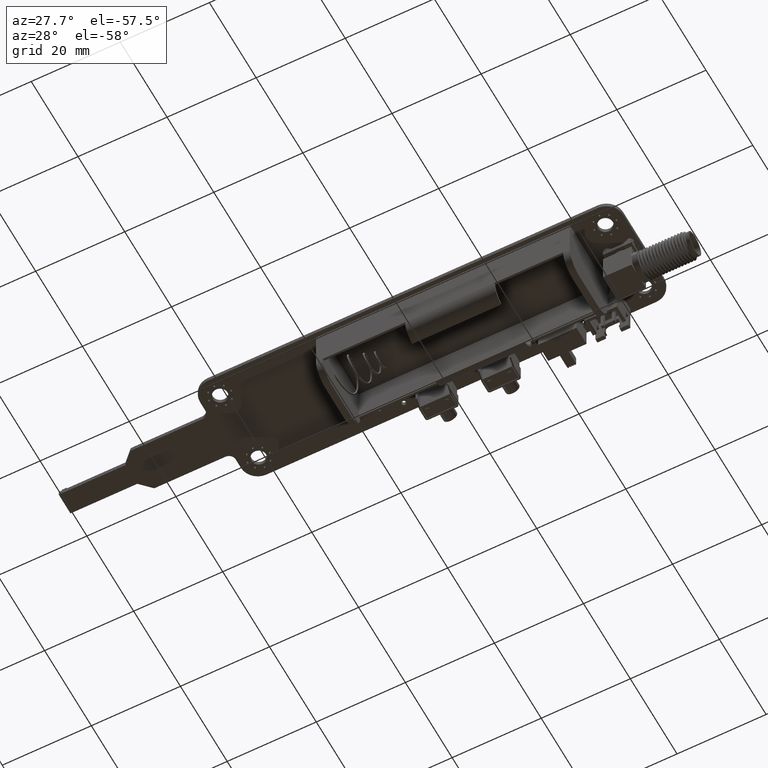
[diagram: clean part render]
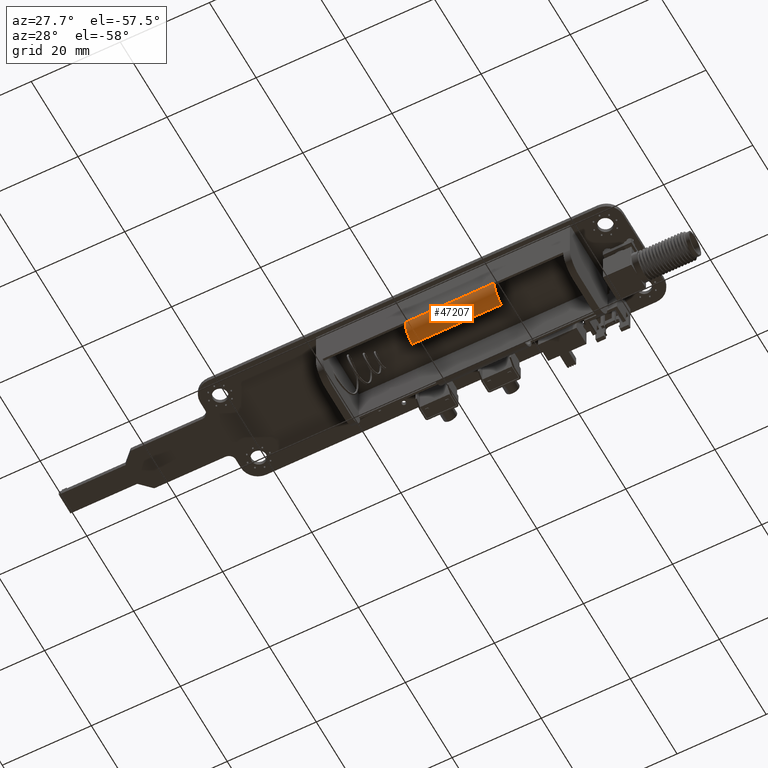
[diagram: same view with one face highlighted and labeled with its STEP entity id]
A machine part, auxiliary view. The second image highlights one B-rep face of the part: STEP entity #47207.
In plain terms, the highlighted cylindrical surface (edge-blend (fillet) strip) has radius 3.9991 mm, axis along (-1, -0, 0).
Its self-contained STEP definition (entity closure, byte-faithful):
#44886 = PLANE('',#44887);
#44887 = AXIS2_PLACEMENT_3D('',#44888,#44889,#44890);
#44888 = CARTESIAN_POINT('',(7.5,9.,1.5));
#44889 = DIRECTION('',(0.,1.,0.));
#44890 = DIRECTION('',(1.,0.,0.));
#45612 = VERTEX_POINT('',#45613);
#45613 = CARTESIAN_POINT('',(7.999084787302,9.,20.));
#45627 = PLANE('',#45628);
#45628 = AXIS2_PLACEMENT_3D('',#45629,#45630,#45631);
#45629 = CARTESIAN_POINT('',(7.5,9.,20.));
#45630 = DIRECTION('',(0.,0.,-1.));
#45631 = DIRECTION('',(-1.,0.,0.));
#45639 = EDGE_CURVE('',#45612,#45640,#45642,.T.);
#45640 = VERTEX_POINT('',#45641);
#45641 = CARTESIAN_POINT('',(7.999084787302,9.,40.));
#45642 = SURFACE_CURVE('',#45643,(#45647,#45654),.PCURVE_S1.);
#45643 = LINE('',#45644,#45645);
#45644 = CARTESIAN_POINT('',(7.999084787302,9.,20.));
#45645 = VECTOR('',#45646,1.);
#45646 = DIRECTION('',(0.,0.,1.));
#45647 = PCURVE('',#44886,#45648);
#45648 = DEFINITIONAL_REPRESENTATION('',(#45649),#45653);
#45649 = LINE('',#45650,#45651);
#45650 = CARTESIAN_POINT('',(0.499084787302,-18.5));
#45651 = VECTOR('',#45652,1.);
#45652 = DIRECTION('',(0.,-1.));
#45653 = ( GEOMETRIC_REPRESENTATION_CONTEXT(2) 
PARAMETRIC_REPRESENTATION_CONTEXT() REPRESENTATION_CONTEXT('2D SPACE',''
  ) );
#45654 = PCURVE('',#45655,#45660);
#45655 = CYLINDRICAL_SURFACE('',#45656,3.9991280149);
#45656 = AXIS2_PLACEMENT_3D('',#45657,#45658,#45659);
#45657 = CARTESIAN_POINT('',(3.999999999998,8.981405820546,20.));
#45658 = DIRECTION('',(-0.,-0.,-1.));
#45659 = DIRECTION('',(1.,0.,0.));
#45660 = DEFINITIONAL_REPRESENTATION('',(#45661),#45665);
#45661 = LINE('',#45662,#45663);
#45662 = CARTESIAN_POINT('',(6.278535731977,0.));
#45663 = VECTOR('',#45664,1.);
#45664 = DIRECTION('',(-0.,-1.));
#45665 = ( GEOMETRIC_REPRESENTATION_CONTEXT(2) 
PARAMETRIC_REPRESENTATION_CONTEXT() REPRESENTATION_CONTEXT('2D SPACE',''
  ) );
#45681 = PLANE('',#45682);
#45682 = AXIS2_PLACEMENT_3D('',#45683,#45684,#45685);
#45683 = CARTESIAN_POINT('',(7.5,9.,40.));
#45684 = DIRECTION('',(0.,0.,-1.));
#45685 = DIRECTION('',(-1.,0.,0.));
#47066 = PLANE('',#47067);
#47067 = AXIS2_PLACEMENT_3D('',#47068,#47069,#47070);
#47068 = CARTESIAN_POINT('',(4.990489871992,12.338379987411,20.));
#47069 = DIRECTION('',(-1.,0.,0.));
#47070 = DIRECTION('',(0.,1.,0.));
#47160 = VERTEX_POINT('',#47161);
#47161 = CARTESIAN_POINT('',(4.990489871992,12.855932203606,40.));
#47182 = EDGE_CURVE('',#45640,#47160,#47183,.T.);
#47183 = SURFACE_CURVE('',#47184,(#47189,#47200),.PCURVE_S1.);
#47184 = CIRCLE('',#47185,3.9991280149);
#47185 = AXIS2_PLACEMENT_3D('',#47186,#47187,#47188);
#47186 = CARTESIAN_POINT('',(3.999999999998,8.981405820546,40.));
#47187 = DIRECTION('',(0.,0.,1.));
#47188 = DIRECTION('',(1.,0.,-0.));
#47189 = PCURVE('',#45681,#47190);
#47190 = DEFINITIONAL_REPRESENTATION('',(#47191),#47199);
#47191 = ( BOUNDED_CURVE() B_SPLINE_CURVE(2,(#47192,#47193,#47194,#47195
    ,#47196,#47197,#47198),.UNSPECIFIED.,.F.,.F.) 
B_SPLINE_CURVE_WITH_KNOTS((1,2,2,2,2,1),(-2.094395102393,0.,
    2.094395102393,4.188790204786,6.28318530718,8.377580409573),
.UNSPECIFIED.) CURVE() GEOMETRIC_REPRESENTATION_ITEM() 
RATIONAL_B_SPLINE_CURVE((1.,0.5,1.,0.5,1.,0.5,1.)) REPRESENTATION_ITEM(
  '') );
#47192 = CARTESIAN_POINT('',(-0.499128014898,-1.8594179454E-02));
#47193 = CARTESIAN_POINT('',(-0.499128014898,6.908098728325));
#47194 = CARTESIAN_POINT('',(5.499564007452,3.444752274435));
#47195 = CARTESIAN_POINT('',(11.498256029802,-1.8594179454E-02));
#47196 = CARTESIAN_POINT('',(5.499564007452,-3.481940633343));
#47197 = CARTESIAN_POINT('',(-0.499128014898,-6.945287087233));
#47198 = CARTESIAN_POINT('',(-0.499128014898,-1.8594179454E-02));
#47199 = ( GEOMETRIC_REPRESENTATION_CONTEXT(2) 
PARAMETRIC_REPRESENTATION_CONTEXT() REPRESENTATION_CONTEXT('2D SPACE',''
  ) );
#47200 = PCURVE('',#45655,#47201);
#47201 = DEFINITIONAL_REPRESENTATION('',(#47202),#47206);
#47202 = LINE('',#47203,#47204);
#47203 = CARTESIAN_POINT('',(6.28318530718,-20.));
#47204 = VECTOR('',#47205,1.);
#47205 = DIRECTION('',(-1.,0.));
#47206 = ( GEOMETRIC_REPRESENTATION_CONTEXT(2) 
PARAMETRIC_REPRESENTATION_CONTEXT() REPRESENTATION_CONTEXT('2D SPACE',''
  ) );
#47207 = ADVANCED_FACE('',(#47208),#45655,.T.);
#47208 = FACE_BOUND('',#47209,.T.);
#47209 = EDGE_LOOP('',(#47210,#47238,#47259,#47260));
#47210 = ORIENTED_EDGE('',*,*,#47211,.T.);
#47211 = EDGE_CURVE('',#45612,#47212,#47214,.T.);
#47212 = VERTEX_POINT('',#47213);
#47213 = CARTESIAN_POINT('',(4.990489871992,12.855932203606,20.));
#47214 = SURFACE_CURVE('',#47215,(#47220,#47227),.PCURVE_S1.);
#47215 = CIRCLE('',#47216,3.9991280149);
#47216 = AXIS2_PLACEMENT_3D('',#47217,#47218,#47219);
#47217 = CARTESIAN_POINT('',(3.999999999998,8.981405820546,20.));
#47218 = DIRECTION('',(0.,0.,1.));
#47219 = DIRECTION('',(1.,0.,-0.));
#47220 = PCURVE('',#45655,#47221);
#47221 = DEFINITIONAL_REPRESENTATION('',(#47222),#47226);
#47222 = LINE('',#47223,#47224);
#47223 = CARTESIAN_POINT('',(6.28318530718,0.));
#47224 = VECTOR('',#47225,1.);
#47225 = DIRECTION('',(-1.,0.));
#47226 = ( GEOMETRIC_REPRESENTATION_CONTEXT(2) 
PARAMETRIC_REPRESENTATION_CONTEXT() REPRESENTATION_CONTEXT('2D SPACE',''
  ) );
#47227 = PCURVE('',#45627,#47228);
#47228 = DEFINITIONAL_REPRESENTATION('',(#47229),#47237);
#47229 = ( BOUNDED_CURVE() B_SPLINE_CURVE(2,(#47230,#47231,#47232,#47233
    ,#47234,#47235,#47236),.UNSPECIFIED.,.F.,.F.) 
B_SPLINE_CURVE_WITH_KNOTS((1,2,2,2,2,1),(-2.094395102393,0.,
    2.094395102393,4.188790204786,6.28318530718,8.377580409573),
.UNSPECIFIED.) CURVE() GEOMETRIC_REPRESENTATION_ITEM() 
RATIONAL_B_SPLINE_CURVE((1.,0.5,1.,0.5,1.,0.5,1.)) REPRESENTATION_ITEM(
  '') );
#47230 = CARTESIAN_POINT('',(-0.499128014898,-1.8594179454E-02));
#47231 = CARTESIAN_POINT('',(-0.499128014898,6.908098728325));
#47232 = CARTESIAN_POINT('',(5.499564007452,3.444752274435));
#47233 = CARTESIAN_POINT('',(11.498256029802,-1.8594179454E-02));
#47234 = CARTESIAN_POINT('',(5.499564007452,-3.481940633343));
#47235 = CARTESIAN_POINT('',(-0.499128014898,-6.945287087233));
#47236 = CARTESIAN_POINT('',(-0.499128014898,-1.8594179454E-02));
#47237 = ( GEOMETRIC_REPRESENTATION_CONTEXT(2) 
PARAMETRIC_REPRESENTATION_CONTEXT() REPRESENTATION_CONTEXT('2D SPACE',''
  ) );
#47238 = ORIENTED_EDGE('',*,*,#47239,.T.);
#47239 = EDGE_CURVE('',#47212,#47160,#47240,.T.);
#47240 = SURFACE_CURVE('',#47241,(#47245,#47252),.PCURVE_S1.);
#47241 = LINE('',#47242,#47243);
#47242 = CARTESIAN_POINT('',(4.990489871992,12.855932203606,20.));
#47243 = VECTOR('',#47244,1.);
#47244 = DIRECTION('',(0.,0.,1.));
#47245 = PCURVE('',#45655,#47246);
#47246 = DEFINITIONAL_REPRESENTATION('',(#47247),#47251);
#47247 = LINE('',#47248,#47249);
#47248 = CARTESIAN_POINT('',(4.962670234988,0.));
#47249 = VECTOR('',#47250,1.);
#47250 = DIRECTION('',(-0.,-1.));
#47251 = ( GEOMETRIC_REPRESENTATION_CONTEXT(2) 
PARAMETRIC_REPRESENTATION_CONTEXT() REPRESENTATION_CONTEXT('2D SPACE',''
  ) );
#47252 = PCURVE('',#47066,#47253);
#47253 = DEFINITIONAL_REPRESENTATION('',(#47254),#47258);
#47254 = LINE('',#47255,#47256);
#47255 = CARTESIAN_POINT('',(0.517552216195,0.));
#47256 = VECTOR('',#47257,1.);
#47257 = DIRECTION('',(0.,-1.));
#47258 = ( GEOMETRIC_REPRESENTATION_CONTEXT(2) 
PARAMETRIC_REPRESENTATION_CONTEXT() REPRESENTATION_CONTEXT('2D SPACE',''
  ) );
#47259 = ORIENTED_EDGE('',*,*,#47182,.F.);
#47260 = ORIENTED_EDGE('',*,*,#45639,.F.);